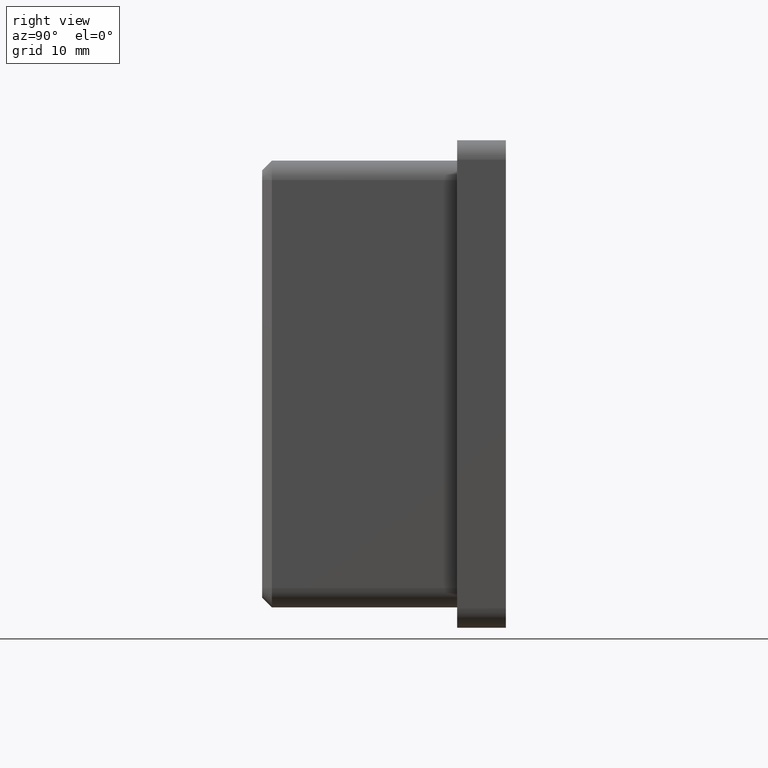
[diagram: clean part render]
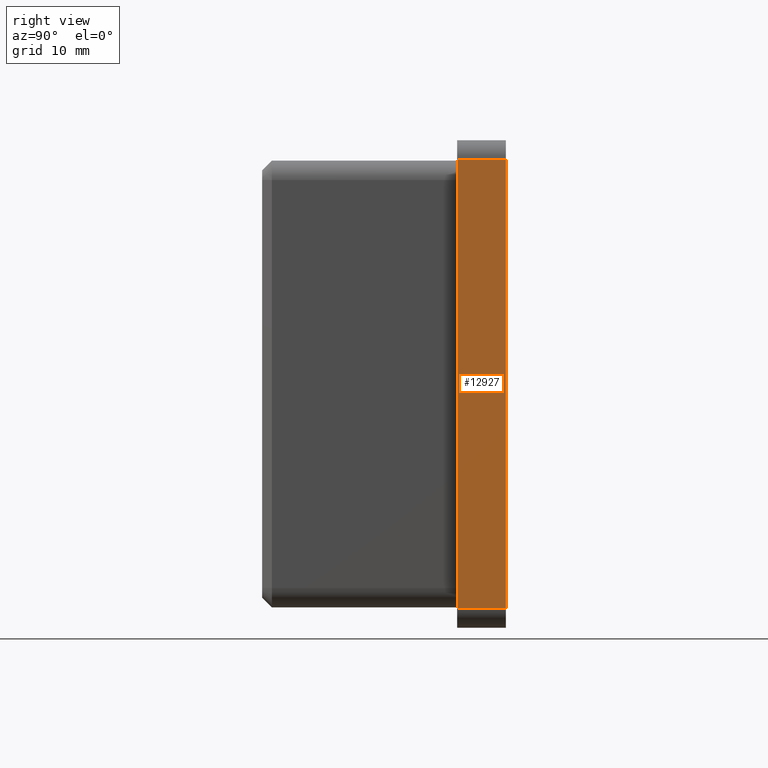
[diagram: same view with one face highlighted and labeled with its STEP entity id]
A machine part, right view. The second image highlights one B-rep face of the part: STEP entity #12927.
In plain terms, the highlighted planar face has unit normal (-1, 0, 0).
Its self-contained STEP definition (entity closure, byte-faithful):
#147 = LINE ( 'NONE', #11085, #2565 ) ;
#221 = CARTESIAN_POINT ( 'NONE',  ( 24.99999999999999600, 0.0000000000000000000, -23.00000000000000000 ) ) ;
#274 = PLANE ( 'NONE',  #11821 ) ;
#752 = DIRECTION ( 'NONE',  ( -1.387778780781445700E-016, -0.0000000000000000000, -1.000000000000000000 ) ) ;
#1012 = CARTESIAN_POINT ( 'NONE',  ( 25.00000000000000400, 0.0000000000000000000, 23.00000000000000400 ) ) ;
#1128 = VERTEX_POINT ( 'NONE', #1012 ) ;
#1752 = LINE ( 'NONE', #12531, #15167 ) ;
#2007 = ORIENTED_EDGE ( 'NONE', *, *, #10067, .T. ) ;
#2565 = VECTOR ( 'NONE', #3970, 1000.000000000000000 ) ;
#2615 = DIRECTION ( 'NONE',  ( 1.387778780781445700E-016, 0.0000000000000000000, 1.000000000000000000 ) ) ;
#3817 = FACE_OUTER_BOUND ( 'NONE', #9638, .T. ) ;
#3970 = DIRECTION ( 'NONE',  ( 0.0000000000000000000, -1.000000000000000000, 0.0000000000000000000 ) ) ;
#4009 = LINE ( 'NONE', #11025, #6431 ) ;
#5962 = CARTESIAN_POINT ( 'NONE',  ( 25.00000000000000400, 5.000000000000000000, 23.00000000000000400 ) ) ;
#6431 = VECTOR ( 'NONE', #12280, 1000.000000000000000 ) ;
#7043 = ORIENTED_EDGE ( 'NONE', *, *, #15291, .F. ) ;
#7345 = LINE ( 'NONE', #7839, #10300 ) ;
#7410 = VERTEX_POINT ( 'NONE', #5962 ) ;
#7839 = CARTESIAN_POINT ( 'NONE',  ( 24.99999999999999600, 5.000000000000000000, -24.99999999999999600 ) ) ;
#9638 = EDGE_LOOP ( 'NONE', ( #11612, #10618, #7043, #2007 ) ) ;
#9996 = VERTEX_POINT ( 'NONE', #221 ) ;
#10067 = EDGE_CURVE ( 'NONE', #7410, #1128, #147, .T. ) ;
#10300 = VECTOR ( 'NONE', #752, 1000.000000000000000 ) ;
#10618 = ORIENTED_EDGE ( 'NONE', *, *, #14242, .T. ) ;
#11025 = CARTESIAN_POINT ( 'NONE',  ( 24.99999999999999600, 0.0000000000000000000, -24.99999999999999600 ) ) ;
#11085 = CARTESIAN_POINT ( 'NONE',  ( 25.00000000000000400, 5.000000000000000000, 23.00000000000000400 ) ) ;
#11148 = VERTEX_POINT ( 'NONE', #13997 ) ;
#11612 = ORIENTED_EDGE ( 'NONE', *, *, #14146, .T. ) ;
#11821 = AXIS2_PLACEMENT_3D ( 'NONE', #12256, #14628, #2615 ) ;
#12256 = CARTESIAN_POINT ( 'NONE',  ( 24.99999999999999600, 5.000000000000000000, -24.99999999999999600 ) ) ;
#12280 = DIRECTION ( 'NONE',  ( -1.387778780781445700E-016, -0.0000000000000000000, -1.000000000000000000 ) ) ;
#12531 = CARTESIAN_POINT ( 'NONE',  ( 24.99999999999999600, 5.000000000000000000, -23.00000000000000000 ) ) ;
#12927 = ADVANCED_FACE ( 'NONE', ( #3817 ), #274, .F. ) ;
#13997 = CARTESIAN_POINT ( 'NONE',  ( 24.99999999999999600, 5.000000000000000000, -23.00000000000000000 ) ) ;
#14146 = EDGE_CURVE ( 'NONE', #1128, #9996, #4009, .T. ) ;
#14242 = EDGE_CURVE ( 'NONE', #9996, #11148, #1752, .T. ) ;
#14628 = DIRECTION ( 'NONE',  ( -1.000000000000000000, 0.0000000000000000000, 1.387778780781445700E-016 ) ) ;
#14872 = DIRECTION ( 'NONE',  ( -0.0000000000000000000, 1.000000000000000000, -0.0000000000000000000 ) ) ;
#15167 = VECTOR ( 'NONE', #14872, 1000.000000000000000 ) ;
#15291 = EDGE_CURVE ( 'NONE', #7410, #11148, #7345, .T. ) ;